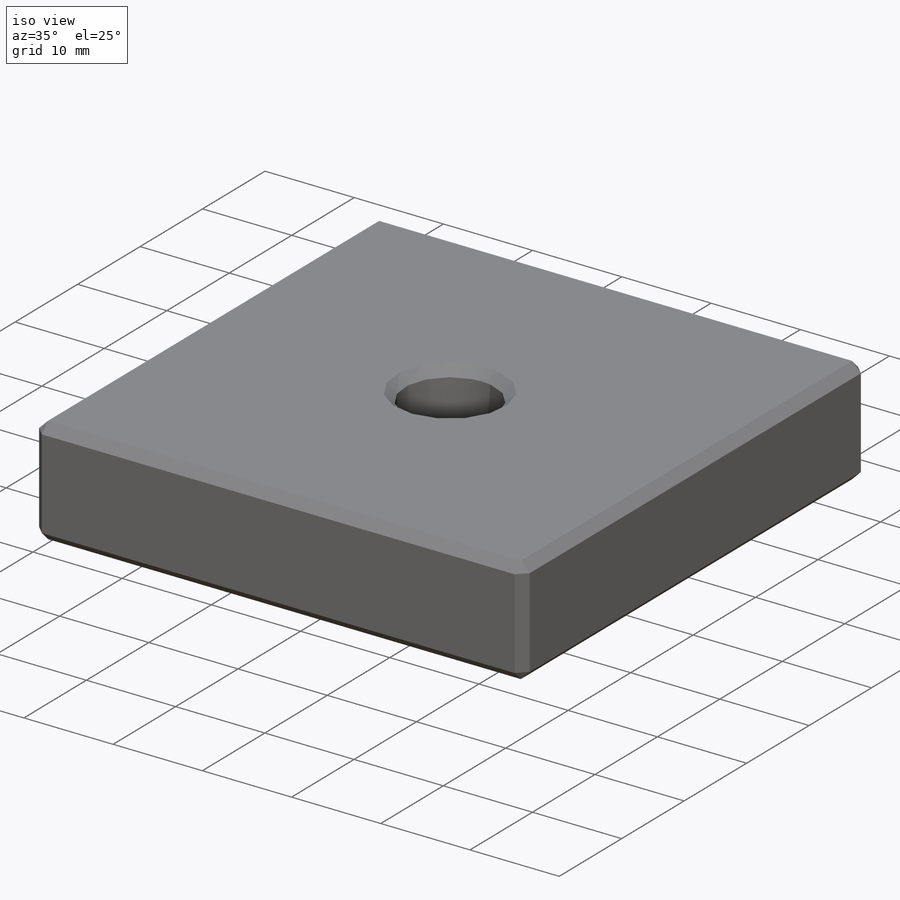
[diagram: iso view]
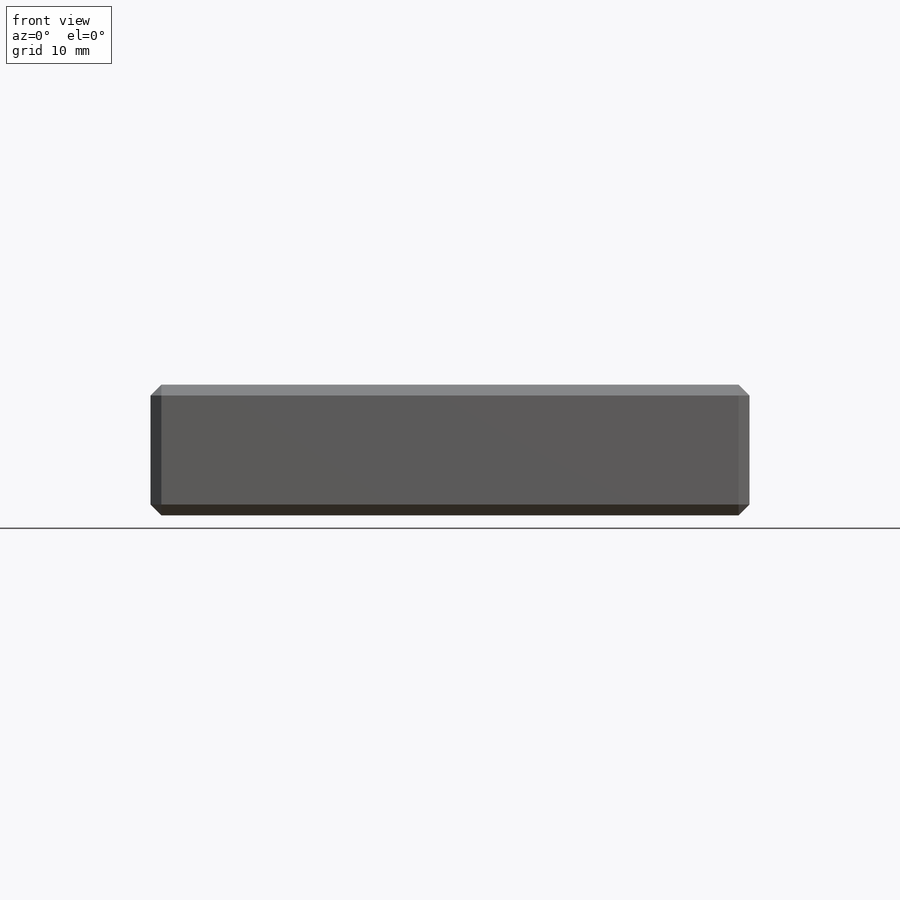
[diagram: front view]
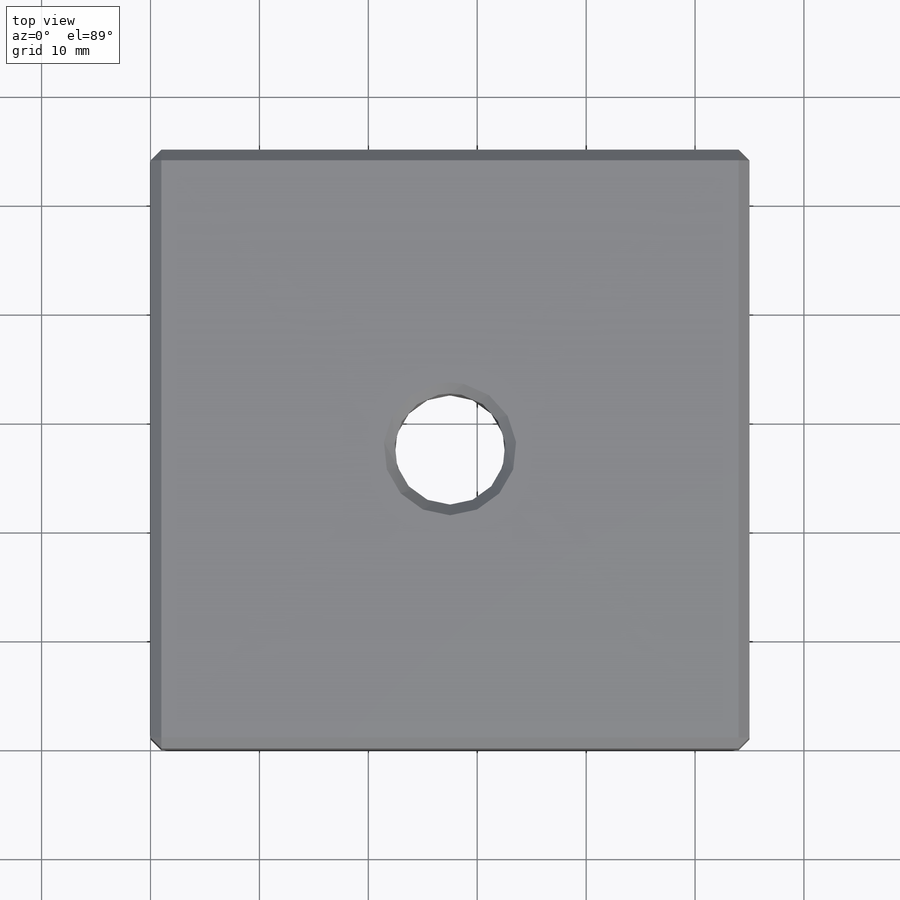
[diagram: top view]
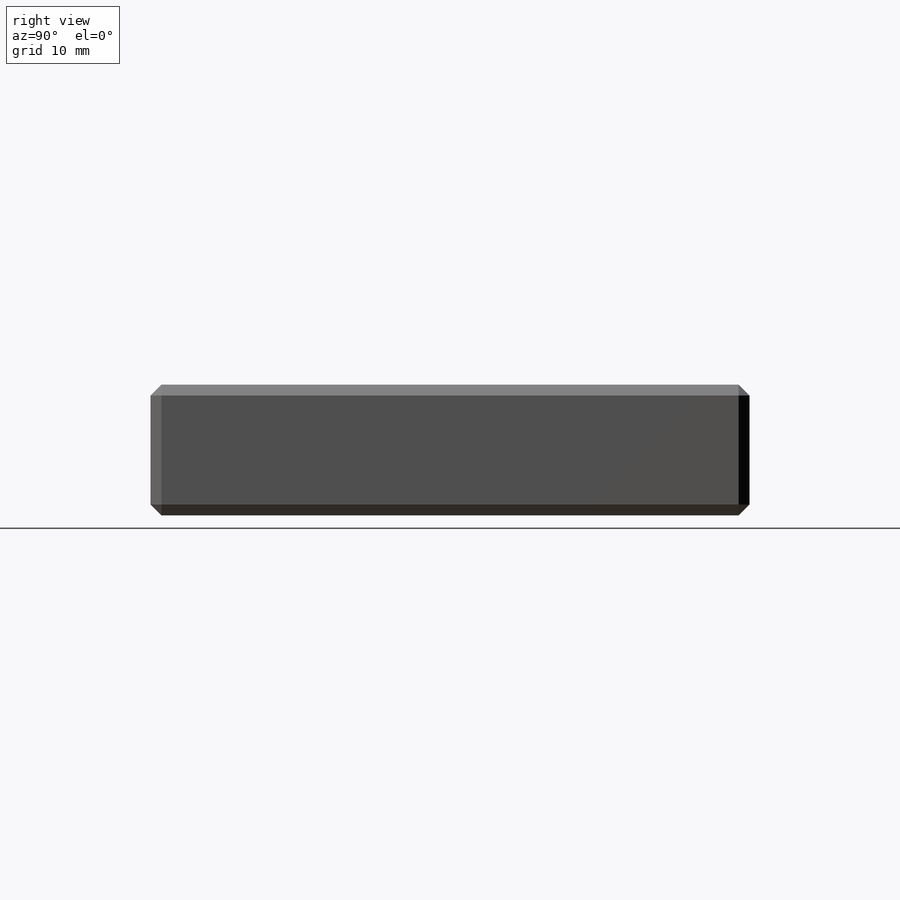
[diagram: right view]
SOLIDWORKS PART (.sldprt)
format: sldprt  version: not decoded by parser v0  size: 188,928 bytes
history: native  units: mm
features: sketch x4, plane x3, material x1, extrude x1, hole x1, thread x1, chamfer x1 (+8 scaffold rows collapsed)
feature tree (20):
  scaffold x8  (default folders/planes/origin — collapsed)
  material  "Matériau <non spécifié>"
  plane  "Plan de face"
  plane  "Plan de dessus"
  plane  "Plan de droite"
  sketch  "Esquisse1"  dims[c1.D1=55.0mm c1.D2=55.0mm c2.D1=27.5mm]
  extrude  "Boss.-Extru.1"  Depth=12mm
  hole  "Trou taraudé M121"  Diameter=10.2mm Depth=12mm
  sketch  "Esquisse3"
  sketch  "Esquisse2"  dims[hole-wizard template sketch: 59 standard entries collapsed; hole parameters kept: c18.Diamètre du trou pour taraudage jusqu'au prochain=10.2mm c18.Profondeur du trou pour taraudage jusqu'au prochain=12.0mm]
  thread  "Filetage de perçage1"  Diameter=12mm  [1 undecoded]
  sketch  "Esquisse4"  dims[D1=~52.789868mm]
  chamfer  "Chanfrein1"  Distance=1mm Angle=45deg
decode coverage: 7 of 8 modeling features carry decoded parameters
note: ~ marks probable driven/reference dimensions
note: 1 parameter value undecoded
note: suppression state not decoded; provenance and decode notes live in map.json
